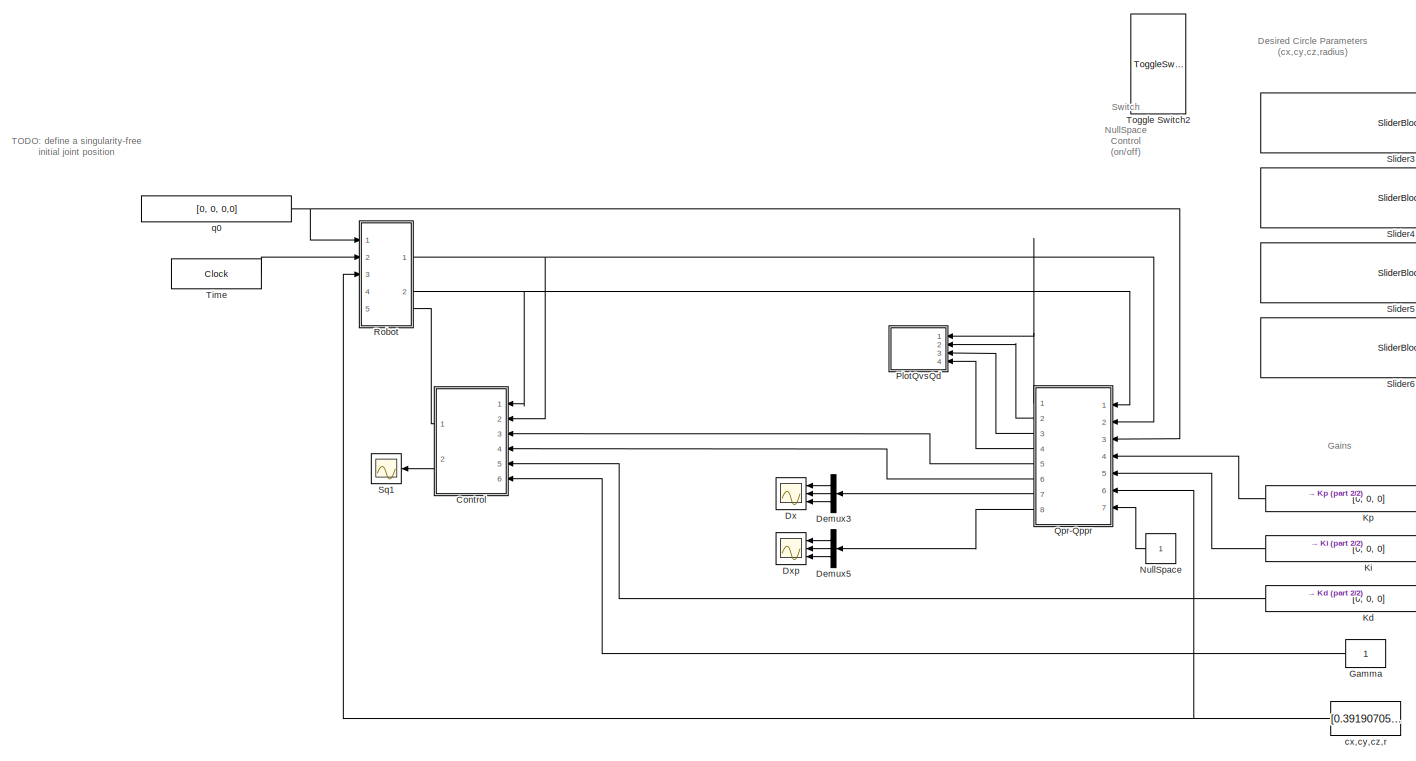
[diagram: root canvas - part 1/2, most of the canvas]
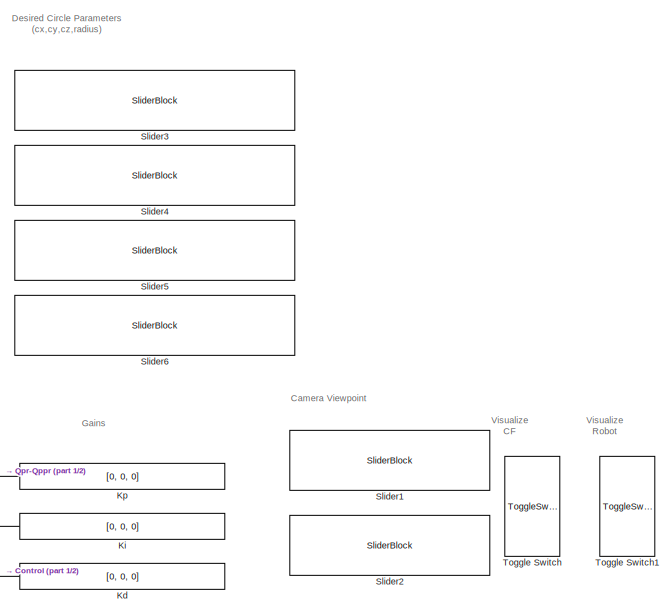
[diagram: root canvas - part 2/2, right side, full height]
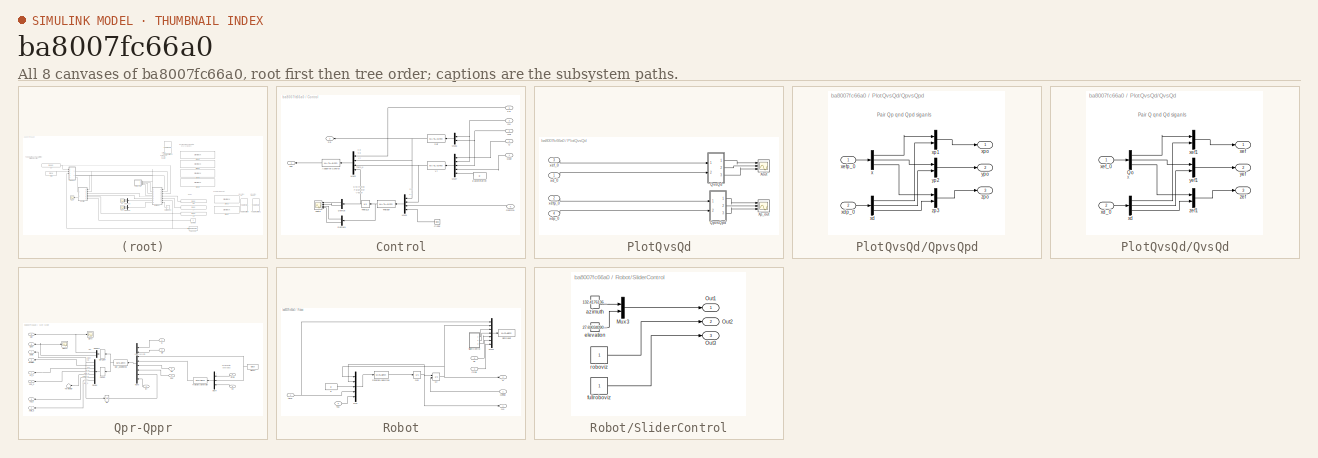
[diagram: thumbnail index - all 8 canvases of the model, root first then tree order]
MODEL slx_ba8007fc66a0
KIND model
CONFIG AbsTol = auto
CONFIG EnableMultiTasking = on
CONFIG FixedStep = 0.001
CONFIG MaxStep = auto
CONFIG MinStep = auto
CONFIG RelTol = 1e-3
CONFIG SampleTimeConstraint = Unconstrained
CONFIG SolverName = ode1
CONFIG StartTime = 0.0
CONFIG StopTime = 75
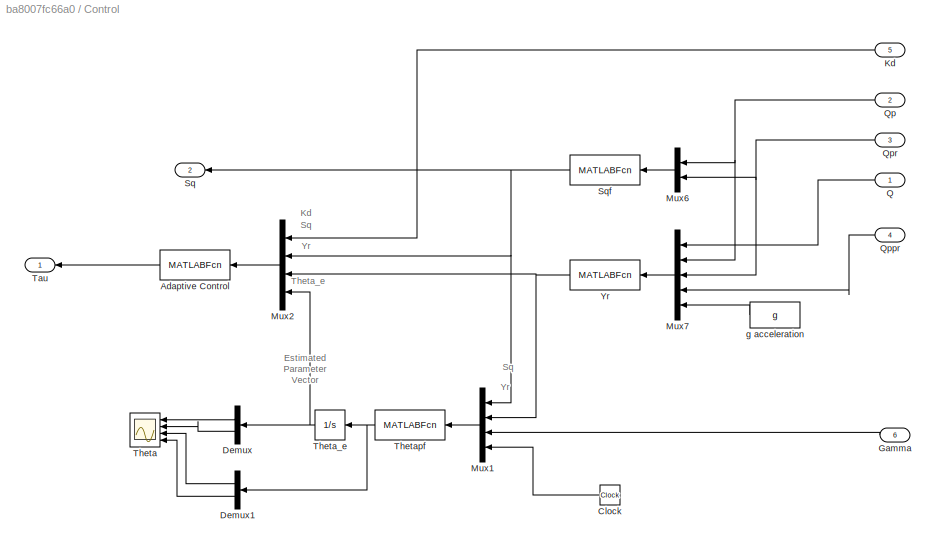
BLOCK [SubSystem] Control
  Ports = [6, 2]
  RequestExecContextInheritance = off
BLOCK [MATLABFcn] Control/Adaptive Control
  MATLABFcn = tauAdaptivePIDR(u)
  OutputDimensions = 4
  Ports = [1, 1]
BLOCK [Clock] Control/Clock
BLOCK [Demux] Control/Demux
  Outputs = 2
  Ports = [1, 2]
BLOCK [Demux] Control/Demux1
  Outputs = 2
  Ports = [1, 2]
BLOCK [Inport] Control/Gamma
  Port = 6
BLOCK [Inport] Control/Kd
  Port = 5
BLOCK [Mux] Control/Mux1
  DisplayOption = bar
  Ports = [4, 1]
BLOCK [Mux] Control/Mux2
  DisplayOption = bar
  Ports = [4, 1]
BLOCK [Mux] Control/Mux6
  DisplayOption = bar
  Inputs = 2
  Ports = [2, 1]
BLOCK [Mux] Control/Mux7
  DisplayOption = bar
  Inputs = 5
  Ports = [5, 1]
BLOCK [Inport] Control/Q
BLOCK [Inport] Control/Qp
  Port = 2
BLOCK [Inport] Control/Qppr
  Port = 4
BLOCK [Inport] Control/Qpr
  Port = 3
BLOCK [Outport] Control/Sq
  Port = 2
BLOCK [MATLABFcn] Control/Sqf
  MATLABFcn = Sq_abbIRB4(u)
  OutputDimensions = 4
  Ports = [1, 1]
BLOCK [Outport] Control/Tau
BLOCK [Scope] Control/Theta
  Floating = off
  NumInputPorts = 4
  Ports = [4]
  ScopeSpecificationString = Simulink.scopes.TimeScopeBlockCfg('CurrentConfiguration', extmgr.ConfigurationSet(extmgr.Configuration('Core','General UI',true),extmgr.Configuration('Core','Source UI',true),extmgr.Configuration('Sources','WiredSimulink',true,'DataLoggingVariableName','ScopeData1'),extmgr.Configuration('Visuals','Time Domain',true,'SerializedDisplays',{struct('MinYLimReal','-0.60987','MaxYLimReal','1.59761','YLab...<+4795ch>
BLOCK [Integrator] Control/Theta_e
  Ports = [1, 1]
BLOCK [MATLABFcn] Control/Thetapf
  MATLABFcn = thetaHatDot_abbIRB4(u)
  OutputDimensions = 39
  Ports = [1, 1]
BLOCK [MATLABFcn] Control/Yr
  MATLABFcn = Yr_abbIRB4(u)
  OutputDimensions = 4*39
  Ports = [1, 1]
BLOCK [Constant] Control/g acceleration
  Value = g
BLOCK [Demux] Demux3
  Outputs = 3
  Ports = [1, 3]
BLOCK [Demux] Demux5
  Outputs = 3
  Ports = [1, 3]
BLOCK [Scope] Dx
  Floating = off
  NumInputPorts = 3
  Ports = [3]
  ScopeSpecificationString = Simulink.scopes.TimeScopeBlockCfg('CurrentConfiguration', extmgr.ConfigurationSet(extmgr.Configuration('Core','General UI',true),extmgr.Configuration('Core','Source UI',true),extmgr.Configuration('Sources','WiredSimulink',true,'DataLoggingVariableName','ScopeData1'),extmgr.Configuration('Visuals','Time Domain',true,'SerializedDisplays',{struct('MinYLimReal','-0.00261','MaxYLimReal','0.00162','YLab...<+2760ch>
BLOCK [Scope] Dxp
  Floating = off
  NumInputPorts = 3
  Ports = [3]
  ScopeSpecificationString = Simulink.scopes.TimeScopeBlockCfg('CurrentConfiguration', extmgr.ConfigurationSet(extmgr.Configuration('Core','General UI',true),extmgr.Configuration('Core','Source UI',true),extmgr.Configuration('Sources','WiredSimulink',true,'DataLoggingVariableName','ScopeData1'),extmgr.Configuration('Visuals','Time Domain',true,'SerializedDisplays',{struct('MinYLimReal','-0.08123','MaxYLimReal','0.07897','YLab...<+2714ch>
BLOCK [Constant] Gamma
BLOCK [Constant] Kd
  Value = [0, 0, 0]
BLOCK [Constant] Ki
  Value = [0, 0, 0]
BLOCK [Constant] Kp
  Value = [0, 0, 0]
BLOCK [Constant] NullSpace
BLOCK [SubSystem] PlotQvsQd
  Ports = [4]
  RequestExecContextInheritance = off
BLOCK [SubSystem] PlotQvsQd/QpvsQpd
  Ports = [2, 3]
  RequestExecContextInheritance = off
BLOCK [Demux] PlotQvsQd/QpvsQpd/x
  Outputs = 3
  Ports = [1, 3]
BLOCK [Demux] PlotQvsQd/QpvsQpd/xd
  Outputs = 3
  Ports = [1, 3]
BLOCK [Inport] PlotQvsQd/QpvsQpd/xdp_0
  Port = 2
BLOCK [Inport] PlotQvsQd/QpvsQpd/xefp_0
BLOCK [Mux] PlotQvsQd/QpvsQpd/xp1
  DisplayOption = bar
  Inputs = 2
  Ports = [2, 1]
BLOCK [Outport] PlotQvsQd/QpvsQpd/xpo
BLOCK [Mux] PlotQvsQd/QpvsQpd/yp2
  DisplayOption = bar
  Inputs = 2
  Ports = [2, 1]
BLOCK [Outport] PlotQvsQd/QpvsQpd/ypo
  Port = 2
BLOCK [Mux] PlotQvsQd/QpvsQpd/zp3
  DisplayOption = bar
  Inputs = 2
  Ports = [2, 1]
BLOCK [Outport] PlotQvsQd/QpvsQpd/zpo
  Port = 3
BLOCK [SubSystem] PlotQvsQd/QvsQd
  Ports = [2, 3]
  RequestExecContextInheritance = off
BLOCK [Demux] PlotQvsQd/QvsQd/Qo
  Outputs = 3
  Ports = [1, 3]
BLOCK [Demux] PlotQvsQd/QvsQd/xd
  Outputs = 3
  Ports = [1, 3]
BLOCK [Inport] PlotQvsQd/QvsQd/xd_0
  Port = 2
BLOCK [Outport] PlotQvsQd/QvsQd/xef
BLOCK [Mux] PlotQvsQd/QvsQd/xef1
  DisplayOption = bar
  Inputs = 2
  Ports = [2, 1]
BLOCK [Inport] PlotQvsQd/QvsQd/xef_0
BLOCK [Outport] PlotQvsQd/QvsQd/yef
  Port = 2
BLOCK [Mux] PlotQvsQd/QvsQd/yef1
  DisplayOption = bar
  Inputs = 2
  Ports = [2, 1]
BLOCK [Outport] PlotQvsQd/QvsQd/zef
  Port = 3
BLOCK [Mux] PlotQvsQd/QvsQd/zef1
  DisplayOption = bar
  Inputs = 2
  Ports = [2, 1]
BLOCK [Scope] PlotQvsQd/Xout
  Floating = off
  NumInputPorts = 3
  Ports = [3]
  ScopeSpecificationString = Simulink.scopes.TimeScopeBlockCfg('CurrentConfiguration', extmgr.ConfigurationSet(extmgr.Configuration('Core','General UI',true),extmgr.Configuration('Core','Source UI',true),extmgr.Configuration('Sources','WiredSimulink',true,'DataLoggingVariableName','ScopeData1'),extmgr.Configuration('Visuals','Time Domain',true,'SerializedDisplays',{struct('MinYLimReal','0.11382','MaxYLimReal','0.67008','YLabe...<+2934ch>
BLOCK [Scope] PlotQvsQd/Xp_out
  Floating = off
  NumInputPorts = 3
  Ports = [3]
  ScopeSpecificationString = Simulink.scopes.TimeScopeBlockCfg('CurrentConfiguration', extmgr.ConfigurationSet(extmgr.Configuration('Core','General UI',true),extmgr.Configuration('Core','Source UI',true),extmgr.Configuration('Sources','WiredSimulink',true,'DataLoggingVariableName','ScopeData2'),extmgr.Configuration('Visuals','Time Domain',true,'SerializedDisplays',{struct('MinYLimReal','-145.33873','MaxYLimReal','212.08328','...<+2817ch>
BLOCK [Inport] PlotQvsQd/xd_0
BLOCK [Inport] PlotQvsQd/xdp_0
  Port = 4
BLOCK [Inport] PlotQvsQd/xef_0
  Port = 3
BLOCK [Inport] PlotQvsQd/xefp_0
  Port = 2
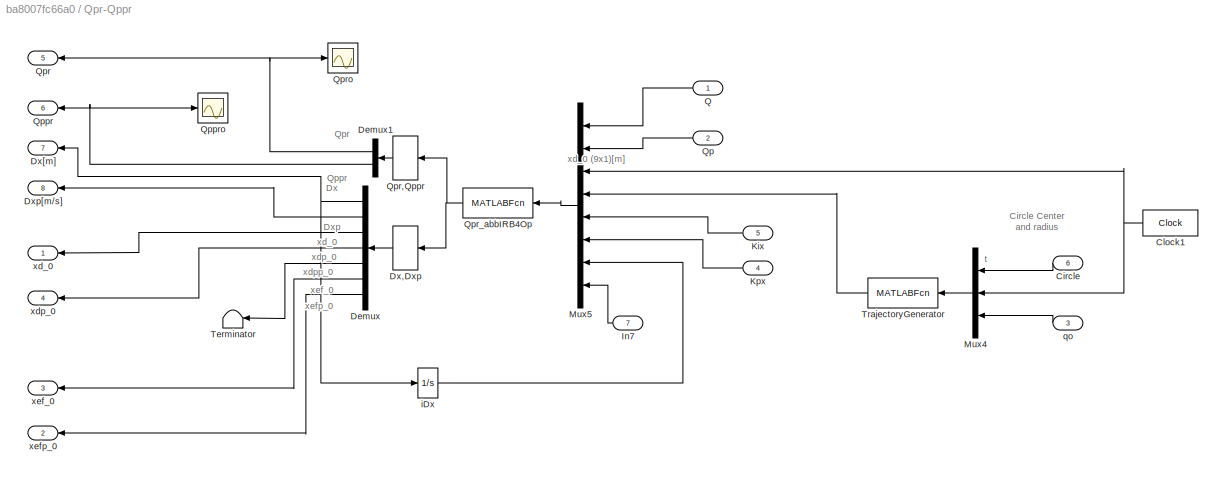
BLOCK [SubSystem] Qpr-Qppr
  Ports = [7, 8]
  RequestExecContextInheritance = off
BLOCK [Inport] Qpr-Qppr/Circle
  Port = 6
BLOCK [Clock] Qpr-Qppr/Clock1
  DisplayTime = on
BLOCK [Demux] Qpr-Qppr/Demux
  Outputs = 7
  Ports = [1, 7]
BLOCK [Demux] Qpr-Qppr/Demux1
  Outputs = 2
  Ports = [1, 2]
BLOCK [Selector] Qpr-Qppr/Dx,Dxp
  IndexOptions = Index vector (dialog)
  Indices = [9:29]
  InputPortWidth = 29
  OutputSizes = 1
  Ports = [1, 1]
BLOCK [Outport] Qpr-Qppr/Dx[m]
  Port = 7
BLOCK [Outport] Qpr-Qppr/Dxp[m//s]
  Port = 8
BLOCK [Inport] Qpr-Qppr/In7
  Port = 7
BLOCK [Inport] Qpr-Qppr/Kix
  Port = 5
BLOCK [Inport] Qpr-Qppr/Kpx
  Port = 4
BLOCK [Mux] Qpr-Qppr/Mux4
  DisplayOption = bar
  Inputs = 3
  Ports = [3, 1]
BLOCK [Mux] Qpr-Qppr/Mux5
  DisplayOption = bar
  Inputs = 8
  Ports = [8, 1]
BLOCK [Inport] Qpr-Qppr/Q
BLOCK [Inport] Qpr-Qppr/Qp
  Port = 2
BLOCK [Outport] Qpr-Qppr/Qppr
  Port = 6
BLOCK [Scope] Qpr-Qppr/Qppro
  Floating = off
  NumInputPorts = 1
  Ports = [1]
  ScopeSpecificationString = Simulink.scopes.TimeScopeBlockCfg('CurrentConfiguration', extmgr.ConfigurationSet(extmgr.Configuration('Core','General UI',true),extmgr.Configuration('Core','Source UI',true),extmgr.Configuration('Sources','WiredSimulink',true,'DataLoggingVariableName','ScopeData3','DataLoggingSaveFormat','StructureWithTime','DataLoggingDecimation','1','DataLoggingDecimateData',true),extmgr.Configuration('Visuals'...<+1735ch>
BLOCK [Outport] Qpr-Qppr/Qpr
  Port = 5
BLOCK [Selector] Qpr-Qppr/Qpr,Qppr
  IndexOptions = Index vector (dialog)
  Indices = [1:8]
  InputPortWidth = 29
  OutputSizes = 1
  Ports = [1, 1]
BLOCK [MATLABFcn] Qpr-Qppr/Qpr_abbIRB4Op
  MATLABFcn = Qpr_abbIRB4Op(u)
  OutputDimensions = 29
  Ports = [1, 1]
BLOCK [Scope] Qpr-Qppr/Qpro
  Floating = off
  NumInputPorts = 1
  Ports = [1]
  ScopeSpecificationString = Simulink.scopes.TimeScopeBlockCfg('CurrentConfiguration', extmgr.ConfigurationSet(extmgr.Configuration('Core','General UI',true),extmgr.Configuration('Core','Source UI',true),extmgr.Configuration('Sources','WiredSimulink',true,'DataLoggingVariableName','ScopeData2','DataLoggingSaveFormat','StructureWithTime','DataLoggingDecimation','1','DataLoggingDecimateData',true),extmgr.Configuration('Visuals'...<+1735ch>
BLOCK [Terminator] Qpr-Qppr/Terminator
BLOCK [MATLABFcn] Qpr-Qppr/TrajectoryGenerator
  MATLABFcn = trajGen_abbIRB4Op(u)
  OutputDimensions = 9
  Ports = [1, 1]
BLOCK [Integrator] Qpr-Qppr/iDx
  Ports = [1, 1]
BLOCK [Inport] Qpr-Qppr/qo
  Port = 3
BLOCK [Outport] Qpr-Qppr/xd_0
BLOCK [Outport] Qpr-Qppr/xdp_0
  Port = 4
BLOCK [Outport] Qpr-Qppr/xef_0
  Port = 3
BLOCK [Outport] Qpr-Qppr/xefp_0
  Port = 2
BLOCK [SubSystem] Robot
  PortSchema = {"entries":[{"content":{"sides":[{"content":{"connectorIds":["In1","In2","In3"]},"type":"ConnectorPlacement.EquallySpacedRectSide","uuid":"6d5847ae-86f7-4e83-b011-f9e0bdbf9fe5"},{"content":{"connectorIds":["In4","Out1","Out2","In5"],"side":"RIGHT"},"type":"ConnectorPlacement.EquallySpacedRectSide","uuid":"f4b7c6cc-ce44-45e7-a236-775b672f12f1"},{"content":{"connectorIds":[],"side":"TOP"},"type":"Co...<+271ch>
  Ports = [5, 2]
  RequestExecContextInheritance = off
BLOCK [Inport] Robot/Circle
  Port = 3
BLOCK [MATLABFcn] Robot/Dinamica abbIRB4
  MATLABFcn = Dinamic_abbIRB4HP(u)
  OutputDimensions = 4
  Ports = [1, 1]
BLOCK [Mux] Robot/Mux
  DisplayOption = bar
  Inputs = 5
  Ports = [5, 1]
BLOCK [Mux] Robot/Mux1
  DisplayOption = bar
  Inputs = 7
  Ports = [7, 1]
BLOCK [MATLABFcn] Robot/PlotRobot
  MATLABFcn = plotRobotOpAda(u)
  OutputDimensions = 0
  Ports = [1]
BLOCK [Outport] Robot/Q
  Port = 2
BLOCK [Integrator] Robot/Qi
  InitialCondition = [0;0;0;0]
  InitialConditionSource = external
  Ports = [2, 1]
BLOCK [Inport] Robot/Qinitial
BLOCK [Outport] Robot/Qp
BLOCK [Integrator] Robot/Qpi
  InitialCondition = [0;0;0;0]
  Ports = [1, 1]
BLOCK [SubSystem] Robot/SliderControl
  Ports = [0, 3]
  RequestExecContextInheritance = off
BLOCK [Mux] Robot/SliderControl/Mux3
  DisplayOption = bar
  Inputs = 2
  Ports = [2, 1]
BLOCK [Outport] Robot/SliderControl/Out1
BLOCK [Outport] Robot/SliderControl/Out2
  Port = 2
BLOCK [Outport] Robot/SliderControl/Out3
  Port = 3
BLOCK [Constant] Robot/SliderControl/azimuth
  Value = 132.4176136363636
BLOCK [Constant] Robot/SliderControl/elevation
  Value = 27.69034090909091
BLOCK [Constant] Robot/SliderControl/fullroboviz
BLOCK [Constant] Robot/SliderControl/roboviz
BLOCK [Inport] Robot/Tau
  Port = 5
BLOCK [Inport] Robot/Xd
  Port = 4
BLOCK [Constant] Robot/g
  Value = g
BLOCK [Inport] Robot/time
  Port = 2
BLOCK [SliderBlock] Slider1
  ScaleMax = 180
  ScaleMin = -180
  TickInterval = 45
BLOCK [SliderBlock] Slider2
  ScaleMax = 180
  ScaleMin = -180
  TickInterval = 45
BLOCK [SliderBlock] Slider3
  ScaleMax = 1
  ScaleMin = -1
  TickInterval = 0.25
BLOCK [SliderBlock] Slider4
  ScaleMax = 1
  ScaleMin = -1
  TickInterval = 0.25
BLOCK [SliderBlock] Slider5
  ScaleMax = 1
  TickInterval = 0.1
BLOCK [SliderBlock] Slider6
  ScaleMax = 0.5
  TickInterval = 0.05
BLOCK [Scope] Sq1
  Floating = off
  NumInputPorts = 1
  Ports = [1]
  ScopeSpecificationString = Simulink.scopes.TimeScopeBlockCfg('CurrentConfiguration', extmgr.ConfigurationSet(extmgr.Configuration('Core','General UI',true),extmgr.Configuration('Core','Source UI',true),extmgr.Configuration('Sources','WiredSimulink',true,'DataLoggingVariableName','ScopeData4','DataLoggingSaveFormat','StructureWithTime','DataLoggingDecimation','1','DataLoggingDecimateData',true),extmgr.Configuration('Visuals'...<+1706ch>
BLOCK [Clock] Time
  DisplayTime = on
BLOCK [ToggleSwitchBlock] Toggle Switch
BLOCK [ToggleSwitchBlock] Toggle Switch1
BLOCK [ToggleSwitchBlock] Toggle Switch2
BLOCK [Constant] cx,cy,cz,r
  Value = [0.3919070512820513,0.104727564102564,0.204,0.2255363805970149]
BLOCK [Constant] q0
  Value = [0, 0, 0,0]
ANNOTATION (root): Switch NullSpace Control (on/off)
ANNOTATION (root): Visualize Robot
ANNOTATION (root): Visualize CF
ANNOTATION (root): Camera Viewpoint
ANNOTATION (root): Desired Circle Parameters (cx,cy,cz,radius)
ANNOTATION (root): Gains
ANNOTATION (root): TODO: define a singularity-free initial joint position
ANNOTATION Control: Estimated Parameter Vector
ANNOTATION Control: Kd
ANNOTATION Control: Sq
ANNOTATION Control: Theta_e
ANNOTATION Control: Yr
ANNOTATION PlotQvsQd/QpvsQpd: Pair Qp qnd Qpd siganls
ANNOTATION PlotQvsQd/QvsQd: Pair Q qnd Qd siganls
ANNOTATION PlotQvsQd/QvsQd: x
ANNOTATION Qpr-Qppr: Circle Center and radius
ANNOTATION Qpr-Qppr: Dx
ANNOTATION Qpr-Qppr: Dxp
ANNOTATION Qpr-Qppr: Qppr
ANNOTATION Qpr-Qppr: Qpr
ANNOTATION Qpr-Qppr: t
ANNOTATION Qpr-Qppr: xd_0
ANNOTATION Qpr-Qppr: xd_0 (9x1)[m]
ANNOTATION Qpr-Qppr: xdp_0
ANNOTATION Qpr-Qppr: xdpp_0
ANNOTATION Qpr-Qppr: xef_0
ANNOTATION Qpr-Qppr: xefp_0
LINE Control/Adaptive Control:1 -> Control/Tau:1
LINE Control/Clock:1 -> Control/Mux1:4
LINE Control/Demux1:1 -> Control/Theta:3
LINE Control/Demux1:2 -> Control/Theta:4
LINE Control/Demux:1 -> Control/Theta:1
LINE Control/Demux:2 -> Control/Theta:2
LINE Control/Gamma:1 -> Control/Mux1:3
LINE Control/Kd:1 -> Control/Mux2:1
LINE Control/Mux1:1 -> Control/Thetapf:1
LINE Control/Mux2:1 -> Control/Adaptive Control:1
LINE Control/Mux6:1 -> Control/Sqf:1
LINE Control/Mux7:1 -> Control/Yr:1
LINE Control/Q:1 -> Control/Mux7:1
NET Control/Qp:1 -> Control/Mux6:1, Control/Mux7:2
LINE Control/Qppr:1 -> Control/Mux7:4
NET Control/Qpr:1 -> Control/Mux6:2, Control/Mux7:3
NET Control/Sqf:1 -> Control/Mux1:1, Control/Mux2:2, Control/Sq:1
NET Control/Theta_e:1 -> Control/Demux:1, Control/Mux2:4
NET Control/Thetapf:1 -> Control/Demux1:1, Control/Theta_e:1
NET Control/Yr:1 -> Control/Mux1:2, Control/Mux2:3
LINE Control/g acceleration:1 -> Control/Mux7:5
LINE Control:1 -> Robot:5
LINE Control:2 -> Sq1:1
LINE Demux3:1 -> Dx:1
LINE Demux3:2 -> Dx:2
LINE Demux3:3 -> Dx:3
LINE Demux5:1 -> Dxp:1
LINE Demux5:2 -> Dxp:2
LINE Demux5:3 -> Dxp:3
LINE Gamma:1 -> Control:6
LINE Kd:1 -> Control:5
LINE Ki:1 -> Qpr-Qppr:5
LINE Kp:1 -> Qpr-Qppr:4
LINE NullSpace:1 -> Qpr-Qppr:7
LINE PlotQvsQd/QpvsQpd/x:1 -> PlotQvsQd/QpvsQpd/xp1:1
LINE PlotQvsQd/QpvsQpd/x:2 -> PlotQvsQd/QpvsQpd/yp2:1
LINE PlotQvsQd/QpvsQpd/x:3 -> PlotQvsQd/QpvsQpd/zp3:1
LINE PlotQvsQd/QpvsQpd/xd:1 -> PlotQvsQd/QpvsQpd/xp1:2
LINE PlotQvsQd/QpvsQpd/xd:2 -> PlotQvsQd/QpvsQpd/yp2:2
LINE PlotQvsQd/QpvsQpd/xd:3 -> PlotQvsQd/QpvsQpd/zp3:2
LINE PlotQvsQd/QpvsQpd/xdp_0:1 -> PlotQvsQd/QpvsQpd/xd:1
LINE PlotQvsQd/QpvsQpd/xefp_0:1 -> PlotQvsQd/QpvsQpd/x:1
LINE PlotQvsQd/QpvsQpd/xp1:1 -> PlotQvsQd/QpvsQpd/xpo:1
LINE PlotQvsQd/QpvsQpd/yp2:1 -> PlotQvsQd/QpvsQpd/ypo:1
LINE PlotQvsQd/QpvsQpd/zp3:1 -> PlotQvsQd/QpvsQpd/zpo:1
LINE PlotQvsQd/QpvsQpd:1 -> PlotQvsQd/Xp_out:1
LINE PlotQvsQd/QpvsQpd:2 -> PlotQvsQd/Xp_out:2
LINE PlotQvsQd/QpvsQpd:3 -> PlotQvsQd/Xp_out:3
LINE PlotQvsQd/QvsQd/Qo:1 -> PlotQvsQd/QvsQd/xef1:1
LINE PlotQvsQd/QvsQd/Qo:2 -> PlotQvsQd/QvsQd/yef1:1
LINE PlotQvsQd/QvsQd/Qo:3 -> PlotQvsQd/QvsQd/zef1:1
LINE PlotQvsQd/QvsQd/xd:1 -> PlotQvsQd/QvsQd/xef1:2
LINE PlotQvsQd/QvsQd/xd:2 -> PlotQvsQd/QvsQd/yef1:2
LINE PlotQvsQd/QvsQd/xd:3 -> PlotQvsQd/QvsQd/zef1:2
LINE PlotQvsQd/QvsQd/xd_0:1 -> PlotQvsQd/QvsQd/xd:1
LINE PlotQvsQd/QvsQd/xef1:1 -> PlotQvsQd/QvsQd/xef:1
LINE PlotQvsQd/QvsQd/xef_0:1 -> PlotQvsQd/QvsQd/Qo:1
LINE PlotQvsQd/QvsQd/yef1:1 -> PlotQvsQd/QvsQd/yef:1
LINE PlotQvsQd/QvsQd/zef1:1 -> PlotQvsQd/QvsQd/zef:1
LINE PlotQvsQd/QvsQd:1 -> PlotQvsQd/Xout:1
LINE PlotQvsQd/QvsQd:2 -> PlotQvsQd/Xout:2
LINE PlotQvsQd/QvsQd:3 -> PlotQvsQd/Xout:3
LINE PlotQvsQd/xd_0:1 -> PlotQvsQd/QvsQd:2
LINE PlotQvsQd/xdp_0:1 -> PlotQvsQd/QpvsQpd:2
LINE PlotQvsQd/xef_0:1 -> PlotQvsQd/QvsQd:1
LINE PlotQvsQd/xefp_0:1 -> PlotQvsQd/QpvsQpd:1
LINE Qpr-Qppr/Circle:1 -> Qpr-Qppr/Mux4:1
NET Qpr-Qppr/Clock1:1 -> Qpr-Qppr/Mux4:2, Qpr-Qppr/Mux5:3
NET Qpr-Qppr/Demux1:1 -> Qpr-Qppr/Qpr:1, Qpr-Qppr/Qpro:1
NET Qpr-Qppr/Demux1:2 -> Qpr-Qppr/Qppr:1, Qpr-Qppr/Qppro:1
NET Qpr-Qppr/Demux:1 -> Qpr-Qppr/Dx[m]:1, Qpr-Qppr/iDx:1
LINE Qpr-Qppr/Demux:2 -> Qpr-Qppr/Dxp[m//s]:1
LINE Qpr-Qppr/Demux:3 -> Qpr-Qppr/xd_0:1
LINE Qpr-Qppr/Demux:4 -> Qpr-Qppr/xdp_0:1
LINE Qpr-Qppr/Demux:5 -> Qpr-Qppr/Terminator:1
LINE Qpr-Qppr/Demux:6 -> Qpr-Qppr/xef_0:1
LINE Qpr-Qppr/Demux:7 -> Qpr-Qppr/xefp_0:1
LINE Qpr-Qppr/Dx,Dxp:1 -> Qpr-Qppr/Demux:1
LINE Qpr-Qppr/In7:1 -> Qpr-Qppr/Mux5:8
LINE Qpr-Qppr/Kix:1 -> Qpr-Qppr/Mux5:5
LINE Qpr-Qppr/Kpx:1 -> Qpr-Qppr/Mux5:6
LINE Qpr-Qppr/Mux4:1 -> Qpr-Qppr/TrajectoryGenerator:1
LINE Qpr-Qppr/Mux5:1 -> Qpr-Qppr/Qpr_abbIRB4Op:1
LINE Qpr-Qppr/Q:1 -> Qpr-Qppr/Mux5:1
LINE Qpr-Qppr/Qp:1 -> Qpr-Qppr/Mux5:2
LINE Qpr-Qppr/Qpr,Qppr:1 -> Qpr-Qppr/Demux1:1
NET Qpr-Qppr/Qpr_abbIRB4Op:1 -> Qpr-Qppr/Dx,Dxp:1, Qpr-Qppr/Qpr,Qppr:1
LINE Qpr-Qppr/TrajectoryGenerator:1 -> Qpr-Qppr/Mux5:4
LINE Qpr-Qppr/iDx:1 -> Qpr-Qppr/Mux5:7
LINE Qpr-Qppr/qo:1 -> Qpr-Qppr/Mux4:3
NET Qpr-Qppr:1 -> PlotQvsQd:1, Robot:4
LINE Qpr-Qppr:2 -> PlotQvsQd:2
LINE Qpr-Qppr:3 -> PlotQvsQd:3
LINE Qpr-Qppr:4 -> PlotQvsQd:4
LINE Qpr-Qppr:5 -> Control:3
LINE Qpr-Qppr:6 -> Control:4
LINE Qpr-Qppr:7 -> Demux3:1
LINE Qpr-Qppr:8 -> Demux5:1
LINE Robot/Circle:1 -> Robot/Mux1:7
LINE Robot/Dinamica abbIRB4:1 -> Robot/Qpi:1
LINE Robot/Mux1:1 -> Robot/PlotRobot:1
LINE Robot/Mux:1 -> Robot/Dinamica abbIRB4:1
NET Robot/Qi:1 -> Robot/Mux1:2, Robot/Mux:1, Robot/Q:1
LINE Robot/Qinitial:1 -> Robot/Qi:2
NET Robot/Qpi:1 -> Robot/Mux:2, Robot/Qi:1, Robot/Qp:1
LINE Robot/SliderControl/Mux3:1 -> Robot/SliderControl/Out1:1
LINE Robot/SliderControl/azimuth:1 -> Robot/SliderControl/Mux3:1
LINE Robot/SliderControl/elevation:1 -> Robot/SliderControl/Mux3:2
LINE Robot/SliderControl/fullroboviz:1 -> Robot/SliderControl/Out3:1
LINE Robot/SliderControl/roboviz:1 -> Robot/SliderControl/Out2:1
LINE Robot/SliderControl:1 -> Robot/Mux1:3
LINE Robot/SliderControl:2 -> Robot/Mux1:4
LINE Robot/SliderControl:3 -> Robot/Mux1:5
LINE Robot/Tau:1 -> Robot/Mux:5
LINE Robot/Xd:1 -> Robot/Mux1:6
LINE Robot/g:1 -> Robot/Mux:3
NET Robot/time:1 -> Robot/Mux1:1, Robot/Mux:4
NET Robot:1 -> Control:2, Qpr-Qppr:2
NET Robot:2 -> Control:1, Qpr-Qppr:1
LINE Time:1 -> Robot:2
NET cx,cy,cz,r:1 -> Qpr-Qppr:6, Robot:3
NET q0:1 -> Qpr-Qppr:3, Robot:1
note: NET lines group one-source signal fan-out (src -> all destinations, sorted); 1:1 wires keep LINE
